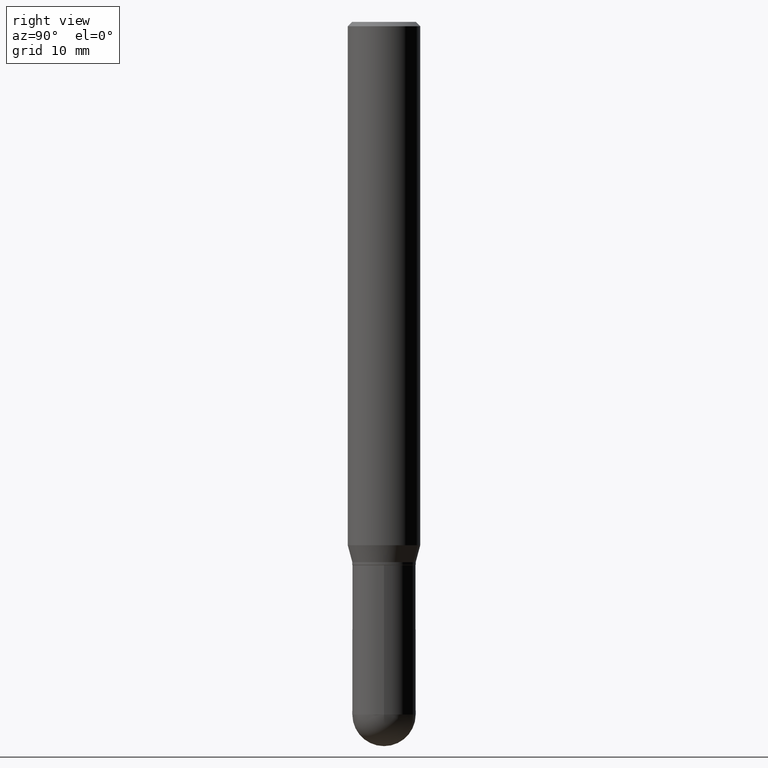
[diagram: clean part render]
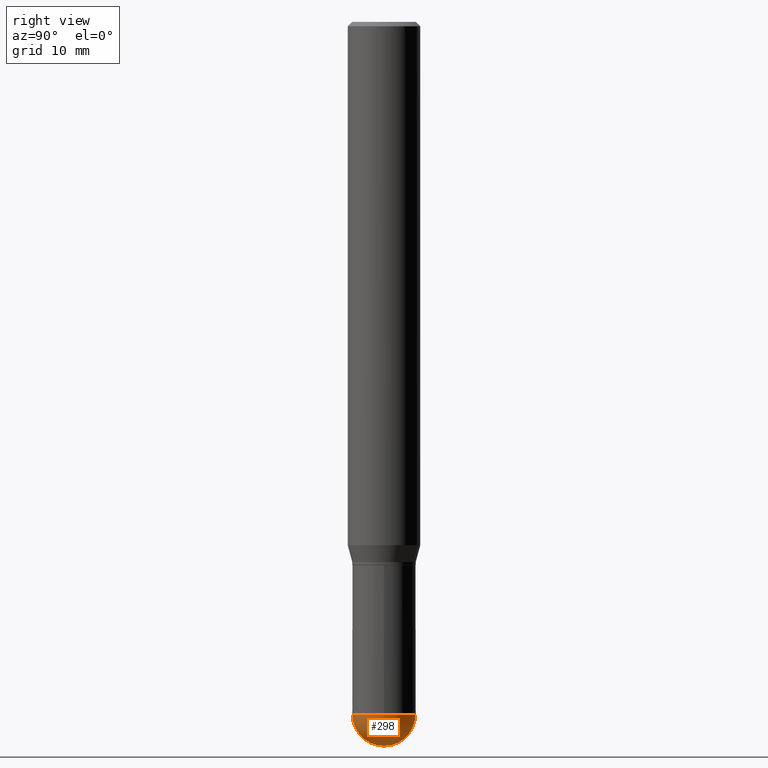
[diagram: same view with one face highlighted and labeled with its STEP entity id]
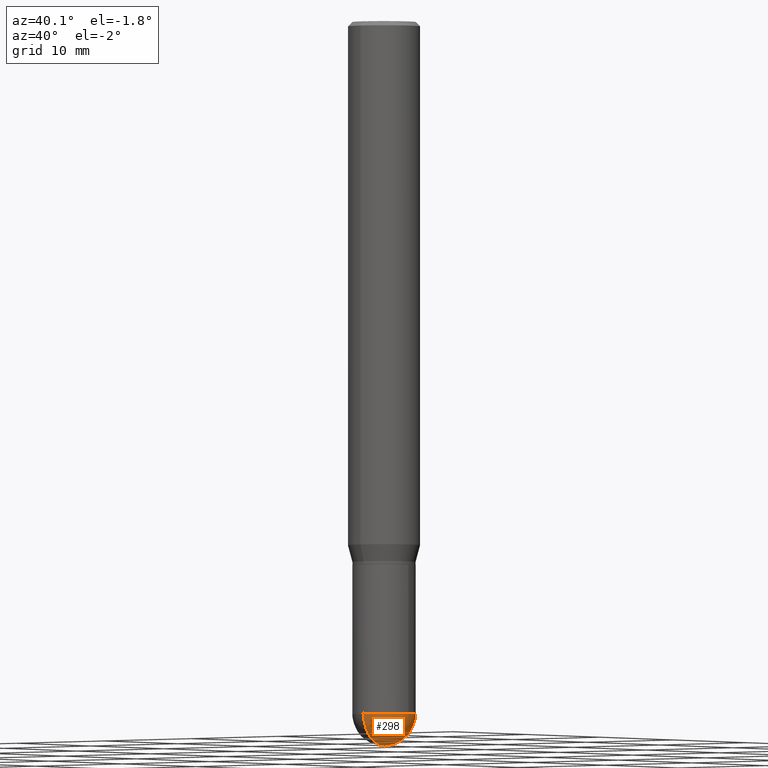
[diagram: same view with one face highlighted and labeled with its STEP entity id]
A machine part, right view. The second image highlights one B-rep face of the part: STEP entity #298.
A second angle (auxiliary view) of the same face is appended — the face is thin or edge-on in the first view.
In plain terms, the highlighted spherical surface has radius 2.7788 mm.
Its self-contained STEP definition (entity closure, byte-faithful):
#6 = CIRCLE ( 'NONE', #500, 0.1093999999999999695 ) ;
#19 = CARTESIAN_POINT ( 'NONE',  ( 5.836782208862565620E-29, -8.360132924621096591E-15, -2.390600000000000058 ) ) ;
#29 = VERTEX_POINT ( 'NONE', #292 ) ;
#34 = ORIENTED_EDGE ( 'NONE', *, *, #510, .F. ) ;
#38 = VERTEX_POINT ( 'NONE', #287 ) ;
#50 = DIRECTION ( 'NONE',  ( 1.000000000000000000, -6.982962677686265922E-15, 4.883557194083112340E-29 ) ) ;
#51 = CIRCLE ( 'NONE', #120, 0.1093999999999999972 ) ;
#52 = FACE_OUTER_BOUND ( 'NONE', #433, .T. ) ;
#94 = SPHERICAL_SURFACE ( 'NONE', #458, 0.1093999999999999695 ) ;
#108 = VERTEX_POINT ( 'NONE', #478 ) ;
#120 = AXIS2_PLACEMENT_3D ( 'NONE', #378, #386, #194 ) ;
#127 = DIRECTION ( 'NONE',  ( 1.000000000000000000, -6.982962677686269866E-15, 0.000000000000000000 ) ) ;
#154 = VERTEX_POINT ( 'NONE', #211 ) ;
#168 = DIRECTION ( 'NONE',  ( -2.445468806185136597E-29, 3.491481338843145583E-15, 1.000000000000000000 ) ) ;
#194 = DIRECTION ( 'NONE',  ( 1.000000000000000000, -6.982962677686269866E-15, 0.000000000000000000 ) ) ;
#211 = CARTESIAN_POINT ( 'NONE',  ( -7.773337529214909122E-16, -0.1094000000000083378, -2.390599999999999614 ) ) ;
#216 = CARTESIAN_POINT ( 'NONE',  ( 5.846137728066187200E-29, -8.346735288638422607E-15, -2.390600000000000058 ) ) ;
#221 = DIRECTION ( 'NONE',  ( 6.982962677686265133E-15, 1.000000000000000000, 0.000000000000000000 ) ) ;
#224 = DIRECTION ( 'NONE',  ( -7.105427357601000281E-15, -1.000000000000000000, 0.000000000000000000 ) ) ;
#241 = CIRCLE ( 'NONE', #307, 0.1093999999999999695 ) ;
#254 = CARTESIAN_POINT ( 'NONE',  ( 5.836782208862565620E-29, -8.360132924621096591E-15, -2.390600000000000058 ) ) ;
#255 = DIRECTION ( 'NONE',  ( -1.000000000000000000, 6.982962677686265922E-15, -4.883557194083112340E-29 ) ) ;
#268 = ORIENTED_EDGE ( 'NONE', *, *, #427, .T. ) ;
#274 = AXIS2_PLACEMENT_3D ( 'NONE', #216, #168, #127 ) ;
#278 = ORIENTED_EDGE ( 'NONE', *, *, #407, .F. ) ;
#287 = CARTESIAN_POINT ( 'NONE',  ( 6.108994255861030141E-29, -8.735402165099200357E-15, -2.500000000000000000 ) ) ;
#291 = DIRECTION ( 'NONE',  ( 6.982962677686265922E-15, 1.000000000000000000, -2.497118824190369227E-15 ) ) ;
#292 = CARTESIAN_POINT ( 'NONE',  ( 0.1093999999999999972, -8.210567516423539018E-15, -2.390600000000000058 ) ) ;
#296 = DIRECTION ( 'NONE',  ( -1.000000000000000000, 7.105427357601001070E-15, -4.926315508542082329E-29 ) ) ;
#298 = ADVANCED_FACE ( 'NONE', ( #52 ), #94, .T. ) ;
#307 = AXIS2_PLACEMENT_3D ( 'NONE', #254, #296, #224 ) ;
#378 = CARTESIAN_POINT ( 'NONE',  ( 5.846137728066187200E-29, -8.346735288638422607E-15, -2.390600000000000058 ) ) ;
#384 = CARTESIAN_POINT ( 'NONE',  ( 5.836782208862565620E-29, -8.360132924621096591E-15, -2.390600000000000058 ) ) ;
#386 = DIRECTION ( 'NONE',  ( -2.445468806185136597E-29, 3.491481338843145583E-15, 1.000000000000000000 ) ) ;
#407 = EDGE_CURVE ( 'NONE', #38, #154, #241, .T. ) ;
#421 = CIRCLE ( 'NONE', #274, 0.1093999999999999972 ) ;
#427 = EDGE_CURVE ( 'NONE', #38, #108, #6, .T. ) ;
#433 = EDGE_LOOP ( 'NONE', ( #278, #268, #34, #463 ) ) ;
#438 = EDGE_CURVE ( 'NONE', #154, #29, #51, .T. ) ;
#458 = AXIS2_PLACEMENT_3D ( 'NONE', #19, #255, #291 ) ;
#463 = ORIENTED_EDGE ( 'NONE', *, *, #438, .F. ) ;
#478 = CARTESIAN_POINT ( 'NONE',  ( 7.639361169389358489E-16, 0.1093999999999916289, -2.390600000000000058 ) ) ;
#500 = AXIS2_PLACEMENT_3D ( 'NONE', #384, #50, #221 ) ;
#510 = EDGE_CURVE ( 'NONE', #29, #108, #421, .T. ) ;